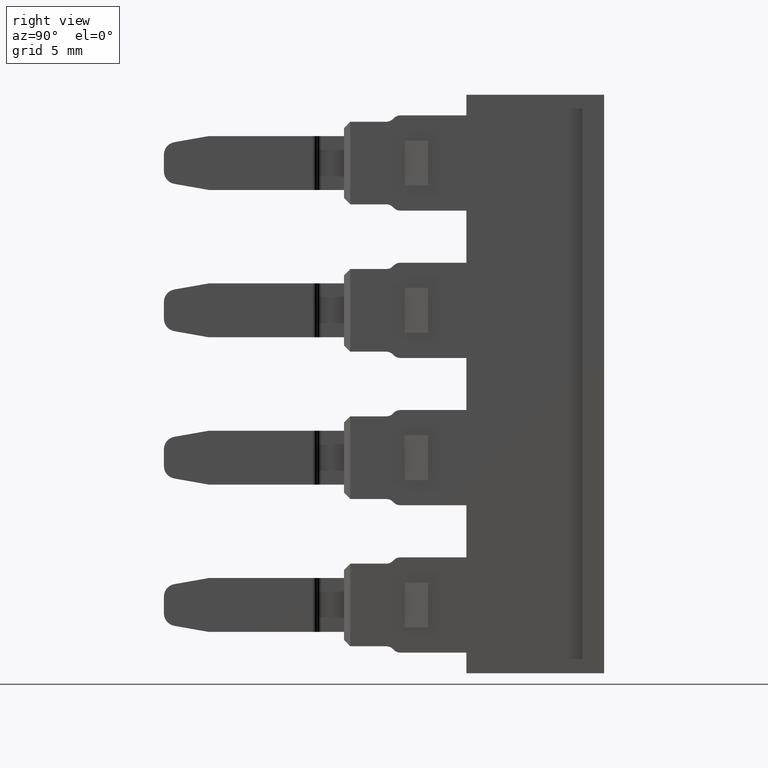
[diagram: clean part render]
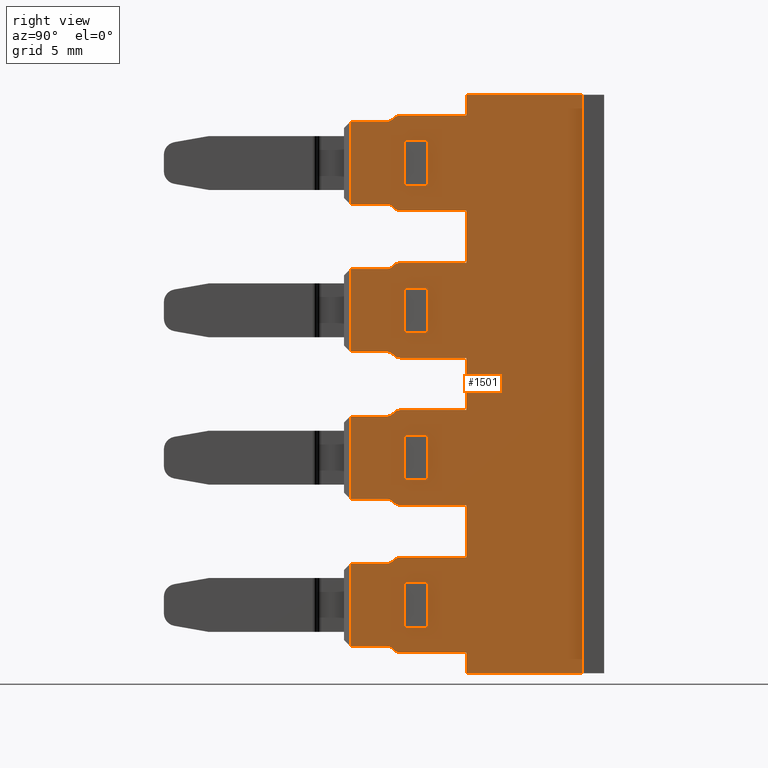
[diagram: same view with one face highlighted and labeled with its STEP entity id]
A machine part, right view. The second image highlights one B-rep face of the part: STEP entity #1501.
In plain terms, the highlighted planar face has unit normal (1, 0, 0).
Its self-contained STEP definition (entity closure, byte-faithful):
#113 = EDGE_LOOP ( 'NONE', ( #2153, #2103, #2145, #2159 ) ) ;
#114 = EDGE_LOOP ( 'NONE', ( #2108, #2140, #2120, #2150 ) ) ;
#169 = EDGE_LOOP ( 'NONE', ( #2083, #2038, #2098, #2091 ) ) ;
#174 = EDGE_LOOP ( 'NONE', ( #2060, #2077, #2068, #2066, #2063, #2072, #2043, #2058, #2100, #2137, #2099, #2084, #2048, #2067, #2086, #2041, #2076, #2069, #2042, #2082, #2062, #2074, #2070, #2071, #2101, #2050, #2090, #2135, #2148, #2164, #2129, #2111, #2126, #2102, #2116, #2146, #2151, #2133, #2136, #2117, #2139, #2149, #2119, #2143, #2158, #2157, #2112, #2113, #2127, #2147, #2144, #2142 ) ) ;
#182 = EDGE_LOOP ( 'NONE', ( #2130, #2125, #2152, #2124 ) ) ;
#212 = VERTEX_POINT ( 'NONE', #2220 ) ;
#214 = VERTEX_POINT ( 'NONE', #2214 ) ;
#215 = VERTEX_POINT ( 'NONE', #2201 ) ;
#216 = VERTEX_POINT ( 'NONE', #2178 ) ;
#217 = VERTEX_POINT ( 'NONE', #2203 ) ;
#218 = VERTEX_POINT ( 'NONE', #2184 ) ;
#220 = VERTEX_POINT ( 'NONE', #2206 ) ;
#223 = VERTEX_POINT ( 'NONE', #2176 ) ;
#224 = VERTEX_POINT ( 'NONE', #2192 ) ;
#225 = VERTEX_POINT ( 'NONE', #2202 ) ;
#226 = VERTEX_POINT ( 'NONE', #2182 ) ;
#227 = VERTEX_POINT ( 'NONE', #2187 ) ;
#228 = VERTEX_POINT ( 'NONE', #2177 ) ;
#229 = VERTEX_POINT ( 'NONE', #2200 ) ;
#231 = VERTEX_POINT ( 'NONE', #2196 ) ;
#234 = VERTEX_POINT ( 'NONE', #2208 ) ;
#236 = VERTEX_POINT ( 'NONE', #2168 ) ;
#238 = VERTEX_POINT ( 'NONE', #2197 ) ;
#239 = VERTEX_POINT ( 'NONE', #2215 ) ;
#240 = VERTEX_POINT ( 'NONE', #2193 ) ;
#241 = VERTEX_POINT ( 'NONE', #2189 ) ;
#244 = VERTEX_POINT ( 'NONE', #2198 ) ;
#245 = VERTEX_POINT ( 'NONE', #2219 ) ;
#246 = VERTEX_POINT ( 'NONE', #2169 ) ;
#247 = VERTEX_POINT ( 'NONE', #2185 ) ;
#248 = VERTEX_POINT ( 'NONE', #2199 ) ;
#251 = VERTEX_POINT ( 'NONE', #2222 ) ;
#252 = VERTEX_POINT ( 'NONE', #2190 ) ;
#253 = VERTEX_POINT ( 'NONE', #2204 ) ;
#255 = VERTEX_POINT ( 'NONE', #2221 ) ;
#256 = VERTEX_POINT ( 'NONE', #2170 ) ;
#257 = VERTEX_POINT ( 'NONE', #2223 ) ;
#259 = VERTEX_POINT ( 'NONE', #2225 ) ;
#260 = VERTEX_POINT ( 'NONE', #2226 ) ;
#262 = VERTEX_POINT ( 'NONE', #2171 ) ;
#263 = VERTEX_POINT ( 'NONE', #2252 ) ;
#264 = VERTEX_POINT ( 'NONE', #2257 ) ;
#265 = VERTEX_POINT ( 'NONE', #2270 ) ;
#266 = VERTEX_POINT ( 'NONE', #2259 ) ;
#267 = VERTEX_POINT ( 'NONE', #2282 ) ;
#268 = VERTEX_POINT ( 'NONE', #2231 ) ;
#269 = VERTEX_POINT ( 'NONE', #2235 ) ;
#270 = VERTEX_POINT ( 'NONE', #2258 ) ;
#271 = VERTEX_POINT ( 'NONE', #2254 ) ;
#272 = VERTEX_POINT ( 'NONE', #2271 ) ;
#273 = VERTEX_POINT ( 'NONE', #2285 ) ;
#274 = VERTEX_POINT ( 'NONE', #2244 ) ;
#275 = VERTEX_POINT ( 'NONE', #2238 ) ;
#282 = VERTEX_POINT ( 'NONE', #2275 ) ;
#283 = VERTEX_POINT ( 'NONE', #2288 ) ;
#285 = VERTEX_POINT ( 'NONE', #2272 ) ;
#288 = VERTEX_POINT ( 'NONE', #2251 ) ;
#290 = VERTEX_POINT ( 'NONE', #2267 ) ;
#292 = VERTEX_POINT ( 'NONE', #2283 ) ;
#295 = VERTEX_POINT ( 'NONE', #2265 ) ;
#298 = VERTEX_POINT ( 'NONE', #2263 ) ;
#299 = VERTEX_POINT ( 'NONE', #2269 ) ;
#303 = VERTEX_POINT ( 'NONE', #2266 ) ;
#307 = VERTEX_POINT ( 'NONE', #2276 ) ;
#309 = VERTEX_POINT ( 'NONE', #2228 ) ;
#311 = VERTEX_POINT ( 'NONE', #2286 ) ;
#318 = VERTEX_POINT ( 'NONE', #2241 ) ;
#331 = VERTEX_POINT ( 'NONE', #2339 ) ;
#335 = VERTEX_POINT ( 'NONE', #2308 ) ;
#336 = VERTEX_POINT ( 'NONE', #2299 ) ;
#337 = VERTEX_POINT ( 'NONE', #2332 ) ;
#442 = VERTEX_POINT ( 'NONE', #2414 ) ;
#517 = VERTEX_POINT ( 'NONE', #2424 ) ;
#1018 = EDGE_CURVE ( 'NONE', #267, #256, #2654, .T. ) ;
#1025 = EDGE_CURVE ( 'NONE', #259, #251, #2679, .T. ) ;
#1064 = EDGE_CURVE ( 'NONE', #255, #267, #3015, .T. ) ;
#1073 = EDGE_CURVE ( 'NONE', #309, #266, #1650, .T. ) ;
#1074 = EDGE_CURVE ( 'NONE', #234, #260, #2986, .T. ) ;
#1077 = EDGE_CURVE ( 'NONE', #229, #215, #3090, .T. ) ;
#1078 = EDGE_CURVE ( 'NONE', #270, #248, #1645, .T. ) ;
#1080 = EDGE_CURVE ( 'NONE', #228, #253, #3063, .T. ) ;
#1081 = EDGE_CURVE ( 'NONE', #224, #239, #1679, .T. ) ;
#1082 = EDGE_CURVE ( 'NONE', #273, #240, #1683, .T. ) ;
#1083 = EDGE_CURVE ( 'NONE', #247, #223, #1653, .T. ) ;
#1086 = EDGE_CURVE ( 'NONE', #282, #337, #4473, .T. ) ;
#1087 = EDGE_CURVE ( 'NONE', #231, #264, #4481, .T. ) ;
#1089 = EDGE_CURVE ( 'NONE', #282, #266, #3072, .T. ) ;
#1091 = EDGE_CURVE ( 'NONE', #271, #442, #3537, .T. ) ;
#1092 = EDGE_CURVE ( 'NONE', #263, #238, #3536, .T. ) ;
#1093 = EDGE_CURVE ( 'NONE', #269, #241, #3109, .T. ) ;
#1094 = EDGE_CURVE ( 'NONE', #248, #252, #4482, .T. ) ;
#1095 = EDGE_CURVE ( 'NONE', #239, #265, #3055, .T. ) ;
#1096 = EDGE_CURVE ( 'NONE', #264, #272, #3543, .T. ) ;
#1097 = EDGE_CURVE ( 'NONE', #311, #260, #3541, .T. ) ;
#1099 = EDGE_CURVE ( 'NONE', #268, #256, #3093, .T. ) ;
#1102 = EDGE_CURVE ( 'NONE', #265, #217, #3531, .T. ) ;
#1104 = EDGE_CURVE ( 'NONE', #217, #216, #3603, .T. ) ;
#1105 = EDGE_CURVE ( 'NONE', #318, #298, #3586, .T. ) ;
#1106 = EDGE_CURVE ( 'NONE', #298, #303, #3584, .T. ) ;
#1108 = EDGE_CURVE ( 'NONE', #234, #244, #3582, .T. ) ;
#1113 = EDGE_CURVE ( 'NONE', #259, #285, #3593, .T. ) ;
#1118 = EDGE_CURVE ( 'NONE', #268, #251, #3646, .T. ) ;
#1120 = EDGE_CURVE ( 'NONE', #246, #227, #3053, .T. ) ;
#1122 = EDGE_CURVE ( 'NONE', #224, #252, #3061, .T. ) ;
#1125 = EDGE_CURVE ( 'NONE', #226, #272, #3642, .T. ) ;
#1127 = EDGE_CURVE ( 'NONE', #303, #309, #3082, .T. ) ;
#1128 = EDGE_CURVE ( 'NONE', #228, #229, #3613, .T. ) ;
#1131 = EDGE_CURVE ( 'NONE', #275, #337, #3644, .T. ) ;
#1135 = EDGE_CURVE ( 'NONE', #225, #246, #3687, .T. ) ;
#1139 = EDGE_CURVE ( 'NONE', #517, #255, #3690, .T. ) ;
#1145 = EDGE_CURVE ( 'NONE', #214, #295, #3676, .T. ) ;
#1146 = EDGE_CURVE ( 'NONE', #220, #285, #3138, .T. ) ;
#1149 = EDGE_CURVE ( 'NONE', #283, #318, #3738, .T. ) ;
#1151 = EDGE_CURVE ( 'NONE', #218, #240, #3709, .T. ) ;
#1154 = EDGE_CURVE ( 'NONE', #442, #517, #3725, .T. ) ;
#1156 = EDGE_CURVE ( 'NONE', #275, #231, #3731, .T. ) ;
#1159 = EDGE_CURVE ( 'NONE', #215, #257, #3735, .T. ) ;
#1160 = EDGE_CURVE ( 'NONE', #245, #218, #3716, .T. ) ;
#1164 = EDGE_CURVE ( 'NONE', #227, #241, #3770, .T. ) ;
#1168 = EDGE_CURVE ( 'NONE', #244, #263, #3745, .T. ) ;
#1171 = EDGE_CURVE ( 'NONE', #307, #283, #3153, .T. ) ;
#1172 = EDGE_CURVE ( 'NONE', #245, #273, #3754, .T. ) ;
#1173 = EDGE_CURVE ( 'NONE', #299, #311, #3155, .T. ) ;
#1179 = EDGE_CURVE ( 'NONE', #220, #307, #3801, .T. ) ;
#1183 = EDGE_CURVE ( 'NONE', #257, #225, #3789, .T. ) ;
#1185 = EDGE_CURVE ( 'NONE', #269, #270, #3792, .T. ) ;
#1186 = EDGE_CURVE ( 'NONE', #247, #238, #3230, .T. ) ;
#1187 = EDGE_CURVE ( 'NONE', #223, #271, #3186, .T. ) ;
#1188 = EDGE_CURVE ( 'NONE', #262, #214, #3810, .T. ) ;
#1189 = EDGE_CURVE ( 'NONE', #216, #299, #3828, .T. ) ;
#1190 = EDGE_CURVE ( 'NONE', #288, #331, #3829, .T. ) ;
#1193 = EDGE_CURVE ( 'NONE', #226, #253, #3852, .T. ) ;
#1208 = EDGE_CURVE ( 'NONE', #236, #335, #3843, .T. ) ;
#1228 = EDGE_CURVE ( 'NONE', #274, #290, #3925, .T. ) ;
#1231 = EDGE_CURVE ( 'NONE', #212, #295, #3963, .T. ) ;
#1232 = EDGE_CURVE ( 'NONE', #236, #336, #3947, .T. ) ;
#1234 = EDGE_CURVE ( 'NONE', #274, #288, #3938, .T. ) ;
#1238 = EDGE_CURVE ( 'NONE', #262, #212, #3936, .T. ) ;
#1244 = EDGE_CURVE ( 'NONE', #290, #331, #3985, .T. ) ;
#1248 = EDGE_CURVE ( 'NONE', #335, #292, #4015, .T. ) ;
#1251 = EDGE_CURVE ( 'NONE', #336, #292, #3981, .T. ) ;
#1501 = ADVANCED_FACE ( 'NONE', ( #5405, #5395, #5385, #5397, #5370 ), #5398, .T. ) ;
#1598 = CARTESIAN_POINT ( 'NONE',  ( 112.2452529172787600, 248.1959466852284500, 150.0398226793859900 ) ) ;
#1600 = DIRECTION ( 'NONE',  ( -1.000000000000000000, -2.643655590711540000E-014, -7.193572994224081300E-015 ) ) ;
#1639 = DIRECTION ( 'NONE',  ( 2.775557561563659400E-014, -1.000000000000000000, 0.0000000000000000000 ) ) ;
#1643 = CARTESIAN_POINT ( 'NONE',  ( 112.2452529172786200, 248.1959466852285100, 172.0398226793865000 ) ) ;
#1645 = LINE ( 'NONE', #1676, #3080 ) ;
#1649 = DIRECTION ( 'NONE',  ( -1.000000000000000000, -2.643655590711540000E-014, -7.193572994224081300E-015 ) ) ;
#1650 = LINE ( 'NONE', #1655, #3006 ) ;
#1652 = CARTESIAN_POINT ( 'NONE',  ( 112.2452529172787200, 248.9601602476020000, 158.8898226793860100 ) ) ;
#1653 = LINE ( 'NONE', #2481, #3096 ) ;
#1655 = CARTESIAN_POINT ( 'NONE',  ( 112.2452529172787500, 249.1566068570083700, 141.5862692887930100 ) ) ;
#1658 = DIRECTION ( 'NONE',  ( -1.000000000000000000, -2.643655590711540000E-014, -7.193572994224081300E-015 ) ) ;
#1661 = CARTESIAN_POINT ( 'NONE',  ( 112.2452529172786800, 249.1566068570084800, 164.0933760699795100 ) ) ;
#1662 = DIRECTION ( 'NONE',  ( -0.0000000000000000000, -0.7071067811865150400, -0.7071067811865799900 ) ) ;
#1665 = DIRECTION ( 'NONE',  ( 2.775557561563659400E-014, -1.000000000000000000, 0.0000000000000000000 ) ) ;
#1666 = DIRECTION ( 'NONE',  ( 7.193572994224081300E-015, 1.901732946337204600E-028, -1.000000000000000000 ) ) ;
#1669 = DIRECTION ( 'NONE',  ( 2.775557561562888800E-014, -1.000000000000000000, 0.0000000000000000000 ) ) ;
#1670 = CARTESIAN_POINT ( 'NONE',  ( 112.2452529172785800, 249.2101602476015800, 154.0898226793856900 ) ) ;
#1671 = DIRECTION ( 'NONE',  ( 2.775557561562888800E-014, -1.000000000000000000, 0.0000000000000000000 ) ) ;
#1675 = DIRECTION ( 'NONE',  ( -0.0000000000000000000, 0.7071067811866451600, -0.7071067811864498700 ) ) ;
#1676 = CARTESIAN_POINT ( 'NONE',  ( 112.2452529172781700, 252.6435672046369800, 222.8398226793859700 ) ) ;
#1679 = LINE ( 'NONE', #1661, #3103 ) ;
#1680 = DIRECTION ( 'NONE',  ( -1.000000000000000000, -2.643655590711540000E-014, -7.193572994224081300E-015 ) ) ;
#1682 = CARTESIAN_POINT ( 'NONE',  ( 112.2452529172786200, 248.9601602476020000, 171.3898226793865000 ) ) ;
#1683 = LINE ( 'NONE', #1670, #3095 ) ;
#1684 = DIRECTION ( 'NONE',  ( -0.0000000000000000000, -1.000000000000000000, -0.0000000000000000000 ) ) ;
#2038 = ORIENTED_EDGE ( 'NONE', *, *, #1151, .T. ) ;
#2041 = ORIENTED_EDGE ( 'NONE', *, *, #1094, .T. ) ;
#2042 = ORIENTED_EDGE ( 'NONE', *, *, #1095, .T. ) ;
#2043 = ORIENTED_EDGE ( 'NONE', *, *, #1077, .T. ) ;
#2048 = ORIENTED_EDGE ( 'NONE', *, *, #1093, .F. ) ;
#2050 = ORIENTED_EDGE ( 'NONE', *, *, #1108, .T. ) ;
#2058 = ORIENTED_EDGE ( 'NONE', *, *, #1159, .T. ) ;
#2060 = ORIENTED_EDGE ( 'NONE', *, *, #1087, .T. ) ;
#2062 = ORIENTED_EDGE ( 'NONE', *, *, #1104, .T. ) ;
#2063 = ORIENTED_EDGE ( 'NONE', *, *, #1080, .F. ) ;
#2066 = ORIENTED_EDGE ( 'NONE', *, *, #1193, .T. ) ;
#2067 = ORIENTED_EDGE ( 'NONE', *, *, #1185, .T. ) ;
#2068 = ORIENTED_EDGE ( 'NONE', *, *, #1125, .F. ) ;
#2069 = ORIENTED_EDGE ( 'NONE', *, *, #1081, .T. ) ;
#2070 = ORIENTED_EDGE ( 'NONE', *, *, #1173, .T. ) ;
#2071 = ORIENTED_EDGE ( 'NONE', *, *, #1097, .T. ) ;
#2072 = ORIENTED_EDGE ( 'NONE', *, *, #1128, .T. ) ;
#2074 = ORIENTED_EDGE ( 'NONE', *, *, #1189, .T. ) ;
#2076 = ORIENTED_EDGE ( 'NONE', *, *, #1122, .F. ) ;
#2077 = ORIENTED_EDGE ( 'NONE', *, *, #1096, .T. ) ;
#2082 = ORIENTED_EDGE ( 'NONE', *, *, #1102, .T. ) ;
#2083 = ORIENTED_EDGE ( 'NONE', *, *, #1160, .T. ) ;
#2084 = ORIENTED_EDGE ( 'NONE', *, *, #1164, .T. ) ;
#2086 = ORIENTED_EDGE ( 'NONE', *, *, #1078, .T. ) ;
#2090 = ORIENTED_EDGE ( 'NONE', *, *, #1168, .T. ) ;
#2091 = ORIENTED_EDGE ( 'NONE', *, *, #1172, .F. ) ;
#2098 = ORIENTED_EDGE ( 'NONE', *, *, #1082, .F. ) ;
#2099 = ORIENTED_EDGE ( 'NONE', *, *, #1120, .T. ) ;
#2100 = ORIENTED_EDGE ( 'NONE', *, *, #1183, .T. ) ;
#2101 = ORIENTED_EDGE ( 'NONE', *, *, #1074, .F. ) ;
#2102 = ORIENTED_EDGE ( 'NONE', *, *, #1139, .T. ) ;
#2103 = ORIENTED_EDGE ( 'NONE', *, *, #1190, .T. ) ;
#2108 = ORIENTED_EDGE ( 'NONE', *, *, #1208, .T. ) ;
#2111 = ORIENTED_EDGE ( 'NONE', *, *, #1091, .T. ) ;
#2112 = ORIENTED_EDGE ( 'NONE', *, *, #1127, .T. ) ;
#2113 = ORIENTED_EDGE ( 'NONE', *, *, #1073, .T. ) ;
#2116 = ORIENTED_EDGE ( 'NONE', *, *, #1064, .T. ) ;
#2117 = ORIENTED_EDGE ( 'NONE', *, *, #1113, .T. ) ;
#2119 = ORIENTED_EDGE ( 'NONE', *, *, #1171, .T. ) ;
#2120 = ORIENTED_EDGE ( 'NONE', *, *, #1251, .F. ) ;
#2124 = ORIENTED_EDGE ( 'NONE', *, *, #1238, .F. ) ;
#2125 = ORIENTED_EDGE ( 'NONE', *, *, #1145, .T. ) ;
#2126 = ORIENTED_EDGE ( 'NONE', *, *, #1154, .T. ) ;
#2127 = ORIENTED_EDGE ( 'NONE', *, *, #1089, .F. ) ;
#2129 = ORIENTED_EDGE ( 'NONE', *, *, #1187, .T. ) ;
#2130 = ORIENTED_EDGE ( 'NONE', *, *, #1188, .T. ) ;
#2133 = ORIENTED_EDGE ( 'NONE', *, *, #1118, .T. ) ;
#2135 = ORIENTED_EDGE ( 'NONE', *, *, #1092, .T. ) ;
#2136 = ORIENTED_EDGE ( 'NONE', *, *, #1025, .F. ) ;
#2137 = ORIENTED_EDGE ( 'NONE', *, *, #1135, .T. ) ;
#2139 = ORIENTED_EDGE ( 'NONE', *, *, #1146, .F. ) ;
#2140 = ORIENTED_EDGE ( 'NONE', *, *, #1248, .T. ) ;
#2142 = ORIENTED_EDGE ( 'NONE', *, *, #1156, .T. ) ;
#2143 = ORIENTED_EDGE ( 'NONE', *, *, #1149, .T. ) ;
#2144 = ORIENTED_EDGE ( 'NONE', *, *, #1131, .F. ) ;
#2145 = ORIENTED_EDGE ( 'NONE', *, *, #1244, .F. ) ;
#2146 = ORIENTED_EDGE ( 'NONE', *, *, #1018, .T. ) ;
#2147 = ORIENTED_EDGE ( 'NONE', *, *, #1086, .T. ) ;
#2148 = ORIENTED_EDGE ( 'NONE', *, *, #1186, .F. ) ;
#2149 = ORIENTED_EDGE ( 'NONE', *, *, #1179, .T. ) ;
#2150 = ORIENTED_EDGE ( 'NONE', *, *, #1232, .F. ) ;
#2151 = ORIENTED_EDGE ( 'NONE', *, *, #1099, .F. ) ;
#2152 = ORIENTED_EDGE ( 'NONE', *, *, #1231, .F. ) ;
#2153 = ORIENTED_EDGE ( 'NONE', *, *, #1234, .T. ) ;
#2157 = ORIENTED_EDGE ( 'NONE', *, *, #1106, .T. ) ;
#2158 = ORIENTED_EDGE ( 'NONE', *, *, #1105, .T. ) ;
#2159 = ORIENTED_EDGE ( 'NONE', *, *, #1228, .F. ) ;
#2164 = ORIENTED_EDGE ( 'NONE', *, *, #1083, .T. ) ;
#2168 = CARTESIAN_POINT ( 'NONE',  ( 112.2452529172785300, 250.5101602476015900, 167.9898226793856700 ) ) ;
#2169 = CARTESIAN_POINT ( 'NONE',  ( 112.2452529172786900, 248.1959466852285100, 166.9398226793865100 ) ) ;
#2170 = CARTESIAN_POINT ( 'NONE',  ( 112.2452529172787300, 248.6066068570087000, 150.3362692887926900 ) ) ;
#2171 = CARTESIAN_POINT ( 'NONE',  ( 112.2452529172785800, 250.5101602476016500, 159.7898226793856800 ) ) ;
#2176 = CARTESIAN_POINT ( 'NONE',  ( 112.2452529172786900, 248.5495000758218400, 155.2862692887928500 ) ) ;
#2177 = CARTESIAN_POINT ( 'NONE',  ( 112.2452529172786200, 248.6066068570087000, 171.7433760699797500 ) ) ;
#2178 = CARTESIAN_POINT ( 'NONE',  ( 112.2452529172787500, 246.1815789080018000, 158.7398226793860900 ) ) ;
#2182 = CARTESIAN_POINT ( 'NONE',  ( 112.2452529172785300, 252.6435672046369800, 171.8898226793864700 ) ) ;
#2184 = CARTESIAN_POINT ( 'NONE',  ( 112.2452529172785800, 249.2101602476015800, 151.5898226793856900 ) ) ;
#2185 = CARTESIAN_POINT ( 'NONE',  ( 112.2452529172786800, 248.6066068570082500, 155.3433760699792900 ) ) ;
#2187 = CARTESIAN_POINT ( 'NONE',  ( 112.2452529172786600, 248.5495000758219000, 166.7933760699797300 ) ) ;
#2189 = CARTESIAN_POINT ( 'NONE',  ( 112.2452529172786800, 248.6066068570083600, 166.7362692887932100 ) ) ;
#2190 = CARTESIAN_POINT ( 'NONE',  ( 112.2452529172786900, 248.9601602476015500, 163.6898226793860000 ) ) ;
#2192 = CARTESIAN_POINT ( 'NONE',  ( 112.2452529172786800, 248.6066068570083000, 163.5433760699792700 ) ) ;
#2193 = CARTESIAN_POINT ( 'NONE',  ( 112.2452529172785800, 249.2101602476015800, 154.0898226793856900 ) ) ;
#2196 = CARTESIAN_POINT ( 'NONE',  ( 112.2452529172785200, 259.1101602476018700, 140.8398226793859700 ) ) ;
#2197 = CARTESIAN_POINT ( 'NONE',  ( 112.2452529172786900, 248.9601602476015200, 155.4898226793859800 ) ) ;
#2198 = CARTESIAN_POINT ( 'NONE',  ( 112.2452529172786200, 252.6435672046369800, 158.3898226793860100 ) ) ;
#2199 = CARTESIAN_POINT ( 'NONE',  ( 112.2452529172785900, 252.6435672046369800, 163.6898226793860000 ) ) ;
#2200 = CARTESIAN_POINT ( 'NONE',  ( 112.2452529172786200, 248.5495000758218400, 171.6862692887932600 ) ) ;
#2201 = CARTESIAN_POINT ( 'NONE',  ( 112.2452529172786300, 248.1959466852284800, 171.5398226793865000 ) ) ;
#2202 = CARTESIAN_POINT ( 'NONE',  ( 112.2452529172786800, 246.1815789080018500, 166.9398226793865100 ) ) ;
#2203 = CARTESIAN_POINT ( 'NONE',  ( 112.2452529172788300, 246.1815789080017400, 163.3398226793860300 ) ) ;
#2204 = CARTESIAN_POINT ( 'NONE',  ( 112.2452529172786200, 248.9601602476020000, 171.8898226793864700 ) ) ;
#2206 = CARTESIAN_POINT ( 'NONE',  ( 112.2452529172786800, 248.6066068570081900, 147.1433760699792700 ) ) ;
#2208 = CARTESIAN_POINT ( 'NONE',  ( 112.2452529172787200, 248.9601602476019800, 158.3898226793860100 ) ) ;
#2214 = CARTESIAN_POINT ( 'NONE',  ( 112.2452529172785800, 249.2101602476016400, 159.7898226793856800 ) ) ;
#2215 = CARTESIAN_POINT ( 'NONE',  ( 112.2452529172786900, 248.5495000758219000, 163.4862692887928400 ) ) ;
#2219 = CARTESIAN_POINT ( 'NONE',  ( 112.2452529172785800, 250.5101602476015900, 151.5898226793856900 ) ) ;
#2220 = CARTESIAN_POINT ( 'NONE',  ( 112.2452529172786500, 250.5101602476016500, 162.2898226793856800 ) ) ;
#2221 = CARTESIAN_POINT ( 'NONE',  ( 112.2452529172787600, 248.1959466852284500, 150.5398226793860500 ) ) ;
#2222 = CARTESIAN_POINT ( 'NONE',  ( 112.2452529172786200, 252.6435672046369200, 150.1898226793860300 ) ) ;
#2223 = CARTESIAN_POINT ( 'NONE',  ( 112.2452529172787300, 246.1815789080018800, 171.5398226793864800 ) ) ;
#2225 = CARTESIAN_POINT ( 'NONE',  ( 112.2452529172785900, 252.6435672046368700, 147.2898226793860200 ) ) ;
#2226 = CARTESIAN_POINT ( 'NONE',  ( 112.2452529172787300, 248.6066068570087600, 158.5362692887926500 ) ) ;
#2228 = CARTESIAN_POINT ( 'NONE',  ( 112.2452529172787500, 248.5495000758217300, 142.1933760699792500 ) ) ;
#2231 = CARTESIAN_POINT ( 'NONE',  ( 112.2452529172787200, 248.9601602476019200, 150.1898226793860300 ) ) ;
#2235 = CARTESIAN_POINT ( 'NONE',  ( 112.2452529172786600, 248.9601602476015500, 166.5898226793864900 ) ) ;
#2238 = CARTESIAN_POINT ( 'NONE',  ( 112.2452529172786300, 252.6435672046368700, 140.8398226793859700 ) ) ;
#2241 = CARTESIAN_POINT ( 'NONE',  ( 112.2452529172788300, 246.1815789080016300, 146.9398226793860500 ) ) ;
#2244 = CARTESIAN_POINT ( 'NONE',  ( 112.2452529172785800, 250.5101602476015300, 143.3898226793856700 ) ) ;
#2251 = CARTESIAN_POINT ( 'NONE',  ( 112.2452529172785800, 249.2101602476015500, 143.3898226793856700 ) ) ;
#2252 = CARTESIAN_POINT ( 'NONE',  ( 112.2452529172785900, 252.6435672046369200, 155.4898226793859800 ) ) ;
#2254 = CARTESIAN_POINT ( 'NONE',  ( 112.2452529172787100, 248.1959466852284200, 155.1398226793859900 ) ) ;
#2257 = CARTESIAN_POINT ( 'NONE',  ( 112.2452529172783500, 259.1101602476019800, 173.0398226793859900 ) ) ;
#2258 = CARTESIAN_POINT ( 'NONE',  ( 112.2452529172785600, 252.6435672046369800, 166.5898226793864900 ) ) ;
#2259 = CARTESIAN_POINT ( 'NONE',  ( 112.2452529172787300, 248.6066068570086400, 142.1362692887926800 ) ) ;
#2263 = CARTESIAN_POINT ( 'NONE',  ( 112.2452529172787500, 246.1815789080016800, 142.3398226793861200 ) ) ;
#2265 = CARTESIAN_POINT ( 'NONE',  ( 112.2452529172785800, 249.2101602476016400, 162.2898226793856800 ) ) ;
#2266 = CARTESIAN_POINT ( 'NONE',  ( 112.2452529172787600, 248.1959466852283900, 142.3398226793860600 ) ) ;
#2267 = CARTESIAN_POINT ( 'NONE',  ( 112.2452529172786500, 250.5101602476015300, 145.8898226793857000 ) ) ;
#2269 = CARTESIAN_POINT ( 'NONE',  ( 112.2452529172787600, 248.1959466852285100, 158.7398226793860400 ) ) ;
#2270 = CARTESIAN_POINT ( 'NONE',  ( 112.2452529172787100, 248.1959466852284800, 163.3398226793859700 ) ) ;
#2271 = CARTESIAN_POINT ( 'NONE',  ( 112.2452529172785200, 252.6435672046369800, 173.0398226793859900 ) ) ;
#2272 = CARTESIAN_POINT ( 'NONE',  ( 112.2452529172786900, 248.9601602476014600, 147.2898226793860200 ) ) ;
#2275 = CARTESIAN_POINT ( 'NONE',  ( 112.2452529172787200, 248.9601602476018600, 141.9898226793860100 ) ) ;
#2276 = CARTESIAN_POINT ( 'NONE',  ( 112.2452529172786900, 248.5495000758217800, 147.0862692887928300 ) ) ;
#2282 = CARTESIAN_POINT ( 'NONE',  ( 112.2452529172787500, 248.5495000758217800, 150.3933760699792700 ) ) ;
#2283 = CARTESIAN_POINT ( 'NONE',  ( 112.2452529172785300, 249.2101602476015800, 170.4898226793856700 ) ) ;
#2285 = CARTESIAN_POINT ( 'NONE',  ( 112.2452529172786500, 250.5101602476015900, 154.0898226793856900 ) ) ;
#2286 = CARTESIAN_POINT ( 'NONE',  ( 112.2452529172787500, 248.5495000758218400, 158.5933760699792600 ) ) ;
#2288 = CARTESIAN_POINT ( 'NONE',  ( 112.2452529172787100, 248.1959466852283600, 146.9398226793860000 ) ) ;
#2299 = CARTESIAN_POINT ( 'NONE',  ( 112.2452529172785900, 250.5101602476015900, 170.4898226793856700 ) ) ;
#2308 = CARTESIAN_POINT ( 'NONE',  ( 112.2452529172785300, 249.2101602476015800, 167.9898226793856700 ) ) ;
#2332 = CARTESIAN_POINT ( 'NONE',  ( 112.2452529172786200, 252.6435672046368700, 141.9898226793860100 ) ) ;
#2339 = CARTESIAN_POINT ( 'NONE',  ( 112.2452529172785800, 249.2101602476015500, 145.8898226793857000 ) ) ;
#2414 = CARTESIAN_POINT ( 'NONE',  ( 112.2452529172788300, 246.1815789080016800, 155.1398226793860400 ) ) ;
#2424 = CARTESIAN_POINT ( 'NONE',  ( 112.2452529172787500, 246.1815789080017400, 150.5398226793861100 ) ) ;
#2481 = CARTESIAN_POINT ( 'NONE',  ( 112.2452529172786800, 249.1566068570084300, 155.8933760699795000 ) ) ;
#2654 = LINE ( 'NONE', #2695, #2981 ) ;
#2679 = LINE ( 'NONE', #2718, #2949 ) ;
#2691 = DIRECTION ( 'NONE',  ( -0.0000000000000000000, 0.7071067811866451600, -0.7071067811864498700 ) ) ;
#2695 = CARTESIAN_POINT ( 'NONE',  ( 112.2452529172787500, 249.1566068570084300, 149.7862692887930200 ) ) ;
#2710 = DIRECTION ( 'NONE',  ( -0.0000000000000000000, 0.0000000000000000000, 1.000000000000000000 ) ) ;
#2715 = DIRECTION ( 'NONE',  ( -0.0000000000000000000, -0.7071067811865150400, -0.7071067811865799900 ) ) ;
#2718 = CARTESIAN_POINT ( 'NONE',  ( 112.2452529172786300, 252.6435672046369200, 146.6398226793870100 ) ) ;
#2793 = AXIS2_PLACEMENT_3D ( 'NONE', #5407, #5384, #5400 ) ;
#2949 = VECTOR ( 'NONE', #2710, 1000.000000000000000 ) ;
#2981 = VECTOR ( 'NONE', #2691, 1000.000000000000000 ) ;
#2986 = CIRCLE ( 'NONE', #2998, 0.5000000000000004400 ) ;
#2994 = AXIS2_PLACEMENT_3D ( 'NONE', #1598, #1600, #1639 ) ;
#2998 = AXIS2_PLACEMENT_3D ( 'NONE', #1652, #1680, #1669 ) ;
#3006 = VECTOR ( 'NONE', #1675, 1000.000000000000000 ) ;
#3015 = CIRCLE ( 'NONE', #2994, 0.4999999999998616700 ) ;
#3052 = VECTOR ( 'NONE', #3649, 1000.000000000000000 ) ;
#3053 = CIRCLE ( 'NONE', #3066, 0.5000000000000282000 ) ;
#3055 = CIRCLE ( 'NONE', #3108, 0.5000000000000282000 ) ;
#3057 = AXIS2_PLACEMENT_3D ( 'NONE', #3553, #3552, #3538 ) ;
#3058 = VECTOR ( 'NONE', #3594, 1000.000000000000000 ) ;
#3059 = VECTOR ( 'NONE', #3539, 1000.000000000000000 ) ;
#3060 = VECTOR ( 'NONE', #3610, 1000.000000000000000 ) ;
#3061 = CIRCLE ( 'NONE', #3068, 0.5000000000000004400 ) ;
#3062 = VECTOR ( 'NONE', #3595, 1000.000000000000000 ) ;
#3063 = CIRCLE ( 'NONE', #3094, 0.5000000000000004400 ) ;
#3066 = AXIS2_PLACEMENT_3D ( 'NONE', #3639, #3620, #3627 ) ;
#3067 = AXIS2_PLACEMENT_3D ( 'NONE', #3525, #3526, #3534 ) ;
#3068 = AXIS2_PLACEMENT_3D ( 'NONE', #3641, #3617, #3628 ) ;
#3072 = CIRCLE ( 'NONE', #3057, 0.5000000000000004400 ) ;
#3078 = VECTOR ( 'NONE', #3563, 1000.000000000000000 ) ;
#3079 = VECTOR ( 'NONE', #3566, 1000.000000000000000 ) ;
#3080 = VECTOR ( 'NONE', #1666, 1000.000000000000000 ) ;
#3082 = CIRCLE ( 'NONE', #3130, 0.4999999999998616700 ) ;
#3083 = VECTOR ( 'NONE', #3570, 1000.000000000000000 ) ;
#3086 = VECTOR ( 'NONE', #3528, 1000.000000000000000 ) ;
#3087 = AXIS2_PLACEMENT_3D ( 'NONE', #3529, #3556, #3530 ) ;
#3090 = CIRCLE ( 'NONE', #3112, 0.4999999999998616700 ) ;
#3092 = VECTOR ( 'NONE', #3557, 1000.000000000000000 ) ;
#3093 = CIRCLE ( 'NONE', #3067, 0.5000000000000004400 ) ;
#3094 = AXIS2_PLACEMENT_3D ( 'NONE', #1682, #1658, #1671 ) ;
#3095 = VECTOR ( 'NONE', #1684, 1000.000000000000000 ) ;
#3096 = VECTOR ( 'NONE', #2715, 1000.000000000000000 ) ;
#3100 = VECTOR ( 'NONE', #3545, 1000.000000000000000 ) ;
#3101 = VECTOR ( 'NONE', #3588, 1000.000000000000000 ) ;
#3102 = VECTOR ( 'NONE', #4480, 1000.000000000000000 ) ;
#3103 = VECTOR ( 'NONE', #1662, 1000.000000000000000 ) ;
#3104 = VECTOR ( 'NONE', #3540, 1000.000000000000000 ) ;
#3108 = AXIS2_PLACEMENT_3D ( 'NONE', #3523, #3535, #3532 ) ;
#3109 = CIRCLE ( 'NONE', #3087, 0.5000000000000004400 ) ;
#3112 = AXIS2_PLACEMENT_3D ( 'NONE', #1643, #1649, #1665 ) ;
#3113 = VECTOR ( 'NONE', #3558, 1000.000000000000000 ) ;
#3114 = VECTOR ( 'NONE', #3696, 1000.000000000000000 ) ;
#3116 = VECTOR ( 'NONE', #3720, 1000.000000000000000 ) ;
#3119 = VECTOR ( 'NONE', #3737, 1000.000000000000000 ) ;
#3120 = VECTOR ( 'NONE', #3773, 1000.000000000000000 ) ;
#3126 = VECTOR ( 'NONE', #3701, 1000.000000000000000 ) ;
#3130 = AXIS2_PLACEMENT_3D ( 'NONE', #3636, #3645, #3647 ) ;
#3133 = VECTOR ( 'NONE', #3764, 1000.000000000000000 ) ;
#3137 = VECTOR ( 'NONE', #3666, 1000.000000000000000 ) ;
#3138 = CIRCLE ( 'NONE', #3171, 0.5000000000000004400 ) ;
#3152 = VECTOR ( 'NONE', #3741, 1000.000000000000000 ) ;
#3153 = CIRCLE ( 'NONE', #3172, 0.5000000000000282000 ) ;
#3155 = CIRCLE ( 'NONE', #3156, 0.4999999999998616700 ) ;
#3156 = AXIS2_PLACEMENT_3D ( 'NONE', #3775, #3772, #3774 ) ;
#3159 = VECTOR ( 'NONE', #3688, 1000.000000000000000 ) ;
#3161 = VECTOR ( 'NONE', #3693, 1000.000000000000000 ) ;
#3162 = VECTOR ( 'NONE', #3660, 1000.000000000000000 ) ;
#3163 = VECTOR ( 'NONE', #3708, 1000.000000000000000 ) ;
#3168 = VECTOR ( 'NONE', #3622, 1000.000000000000000 ) ;
#3171 = AXIS2_PLACEMENT_3D ( 'NONE', #3721, #3705, #3711 ) ;
#3172 = AXIS2_PLACEMENT_3D ( 'NONE', #3779, #3739, #3753 ) ;
#3174 = VECTOR ( 'NONE', #3710, 1000.000000000000000 ) ;
#3180 = AXIS2_PLACEMENT_3D ( 'NONE', #3805, #3795, #3796 ) ;
#3185 = AXIS2_PLACEMENT_3D ( 'NONE', #3800, #3814, #3809 ) ;
#3186 = CIRCLE ( 'NONE', #3180, 0.5000000000000282000 ) ;
#3189 = VECTOR ( 'NONE', #3823, 1000.000000000000000 ) ;
#3215 = VECTOR ( 'NONE', #3819, 1000.000000000000000 ) ;
#3218 = VECTOR ( 'NONE', #3802, 1000.000000000000000 ) ;
#3219 = VECTOR ( 'NONE', #3872, 1000.000000000000000 ) ;
#3220 = VECTOR ( 'NONE', #3871, 1000.000000000000000 ) ;
#3221 = VECTOR ( 'NONE', #3822, 1000.000000000000000 ) ;
#3230 = CIRCLE ( 'NONE', #3185, 0.5000000000000004400 ) ;
#3231 = VECTOR ( 'NONE', #3913, 1000.000000000000000 ) ;
#3232 = VECTOR ( 'NONE', #3794, 1000.000000000000000 ) ;
#3237 = VECTOR ( 'NONE', #3958, 1000.000000000000000 ) ;
#3240 = VECTOR ( 'NONE', #3934, 1000.000000000000000 ) ;
#3241 = VECTOR ( 'NONE', #3959, 1000.000000000000000 ) ;
#3243 = VECTOR ( 'NONE', #4004, 1000.000000000000000 ) ;
#3250 = VECTOR ( 'NONE', #3942, 1000.000000000000000 ) ;
#3263 = VECTOR ( 'NONE', #4008, 1000.000000000000000 ) ;
#3269 = VECTOR ( 'NONE', #3988, 1000.000000000000000 ) ;
#3270 = VECTOR ( 'NONE', #3982, 1000.000000000000000 ) ;
#3519 = CARTESIAN_POINT ( 'NONE',  ( 112.2452529172786800, 249.5101602476014500, 155.1398226793859900 ) ) ;
#3520 = CARTESIAN_POINT ( 'NONE',  ( 112.2452529172786100, 249.5101602476015000, 173.0398226793859900 ) ) ;
#3523 = CARTESIAN_POINT ( 'NONE',  ( 112.2452529172786900, 248.1959466852285100, 163.8398226793859700 ) ) ;
#3525 = CARTESIAN_POINT ( 'NONE',  ( 112.2452529172787200, 248.9601602476019500, 150.6898226793860300 ) ) ;
#3526 = DIRECTION ( 'NONE',  ( -1.000000000000000000, -2.643655590711540000E-014, -7.193572994224081300E-015 ) ) ;
#3528 = DIRECTION ( 'NONE',  ( 2.643655590711540000E-014, -1.000000000000000000, -0.0000000000000000000 ) ) ;
#3529 = CARTESIAN_POINT ( 'NONE',  ( 112.2452529172786600, 248.9601602476015500, 167.0898226793864900 ) ) ;
#3530 = DIRECTION ( 'NONE',  ( -2.775557561562888800E-014, 1.000000000000000000, 0.0000000000000000000 ) ) ;
#3531 = LINE ( 'NONE', #3587, #3101 ) ;
#3532 = DIRECTION ( 'NONE',  ( 2.775557561562734800E-014, -1.000000000000000000, 0.0000000000000000000 ) ) ;
#3534 = DIRECTION ( 'NONE',  ( 2.775557561562888800E-014, -1.000000000000000000, 0.0000000000000000000 ) ) ;
#3535 = DIRECTION ( 'NONE',  ( -1.000000000000000000, -2.643655590711540000E-014, -7.193572994224081300E-015 ) ) ;
#3536 = LINE ( 'NONE', #3555, #3086 ) ;
#3537 = LINE ( 'NONE', #3519, #3059 ) ;
#3538 = DIRECTION ( 'NONE',  ( 2.775557561562888800E-014, -1.000000000000000000, 0.0000000000000000000 ) ) ;
#3539 = DIRECTION ( 'NONE',  ( 2.643655590711540000E-014, -1.000000000000000000, -0.0000000000000000000 ) ) ;
#3540 = DIRECTION ( 'NONE',  ( 2.643655590711540000E-014, -1.000000000000000000, -0.0000000000000000000 ) ) ;
#3541 = LINE ( 'NONE', #3544, #3100 ) ;
#3543 = LINE ( 'NONE', #3520, #3092 ) ;
#3544 = CARTESIAN_POINT ( 'NONE',  ( 112.2452529172787500, 249.1566068570084800, 157.9862692887930100 ) ) ;
#3545 = DIRECTION ( 'NONE',  ( -0.0000000000000000000, 0.7071067811866451600, -0.7071067811864498700 ) ) ;
#3549 = CARTESIAN_POINT ( 'NONE',  ( 112.2452529172786800, 249.5101602476015000, 163.6898226793860000 ) ) ;
#3552 = DIRECTION ( 'NONE',  ( -1.000000000000000000, -2.643655590711540000E-014, -7.193572994224081300E-015 ) ) ;
#3553 = CARTESIAN_POINT ( 'NONE',  ( 112.2452529172787200, 248.9601602476018900, 142.4898226793860100 ) ) ;
#3555 = CARTESIAN_POINT ( 'NONE',  ( 112.2452529172786800, 249.5101602476014500, 155.4898226793859800 ) ) ;
#3556 = DIRECTION ( 'NONE',  ( -1.000000000000000000, -2.643655590711534900E-014, -7.193572994224081300E-015 ) ) ;
#3557 = DIRECTION ( 'NONE',  ( 2.643655590711540000E-014, -1.000000000000000000, -0.0000000000000000000 ) ) ;
#3558 = DIRECTION ( 'NONE',  ( -7.193572994224081300E-015, -1.901732946337204600E-028, 1.000000000000000000 ) ) ;
#3560 = CARTESIAN_POINT ( 'NONE',  ( 112.2452529172787100, 249.5101602476013900, 142.3398226793861200 ) ) ;
#3561 = CARTESIAN_POINT ( 'NONE',  ( 112.2452529172786800, 249.5101602476013900, 147.2898226793860200 ) ) ;
#3563 = DIRECTION ( 'NONE',  ( 7.193572994224081300E-015, 1.901732946337204600E-028, -1.000000000000000000 ) ) ;
#3566 = DIRECTION ( 'NONE',  ( 2.643655590711540000E-014, -1.000000000000000000, -0.0000000000000000000 ) ) ;
#3570 = DIRECTION ( 'NONE',  ( 7.193572994224081300E-015, 1.901732946337204600E-028, -1.000000000000000000 ) ) ;
#3577 = CARTESIAN_POINT ( 'NONE',  ( 112.2452529172787100, 249.5101602476015000, 158.3898226793860100 ) ) ;
#3582 = LINE ( 'NONE', #3577, #3062 ) ;
#3584 = LINE ( 'NONE', #3560, #3058 ) ;
#3586 = LINE ( 'NONE', #3602, #3078 ) ;
#3587 = CARTESIAN_POINT ( 'NONE',  ( 112.2452529172786800, 249.5101602476015000, 163.3398226793859700 ) ) ;
#3588 = DIRECTION ( 'NONE',  ( 2.643655590711540000E-014, -1.000000000000000000, -0.0000000000000000000 ) ) ;
#3593 = LINE ( 'NONE', #3561, #3079 ) ;
#3594 = DIRECTION ( 'NONE',  ( -2.643655590711540000E-014, 1.000000000000000000, 0.0000000000000000000 ) ) ;
#3595 = DIRECTION ( 'NONE',  ( -2.643655590711540000E-014, 1.000000000000000000, 0.0000000000000000000 ) ) ;
#3597 = CARTESIAN_POINT ( 'NONE',  ( 112.2452529172783200, 246.1815789080016800, 222.8398226793859700 ) ) ;
#3602 = CARTESIAN_POINT ( 'NONE',  ( 112.2452529172783200, 246.1815789080015700, 206.4398226793860000 ) ) ;
#3603 = LINE ( 'NONE', #3597, #3083 ) ;
#3610 = DIRECTION ( 'NONE',  ( -0.0000000000000000000, 0.0000000000000000000, 1.000000000000000000 ) ) ;
#3611 = CARTESIAN_POINT ( 'NONE',  ( 112.2452529172785300, 252.6435672046369800, 175.4398226793854900 ) ) ;
#3613 = LINE ( 'NONE', #3631, #3168 ) ;
#3617 = DIRECTION ( 'NONE',  ( -1.000000000000000000, -2.643655590711534900E-014, -7.193572994224081300E-015 ) ) ;
#3620 = DIRECTION ( 'NONE',  ( -1.000000000000000000, -2.643655590711540000E-014, -7.193572994224081300E-015 ) ) ;
#3622 = DIRECTION ( 'NONE',  ( -0.0000000000000000000, -0.7071067811866451600, -0.7071067811864498700 ) ) ;
#3627 = DIRECTION ( 'NONE',  ( 2.775557561562734800E-014, -1.000000000000000000, 0.0000000000000000000 ) ) ;
#3628 = DIRECTION ( 'NONE',  ( -2.775557561562888800E-014, 1.000000000000000000, 0.0000000000000000000 ) ) ;
#3631 = CARTESIAN_POINT ( 'NONE',  ( 112.2452529172786200, 249.1566068570084800, 172.2933760699795000 ) ) ;
#3634 = CARTESIAN_POINT ( 'NONE',  ( 112.2452529172787100, 249.5101602476014500, 150.1898226793860300 ) ) ;
#3636 = CARTESIAN_POINT ( 'NONE',  ( 112.2452529172787600, 248.1959466852283900, 141.8398226793860000 ) ) ;
#3639 = CARTESIAN_POINT ( 'NONE',  ( 112.2452529172786800, 248.1959466852285100, 166.4398226793865100 ) ) ;
#3641 = CARTESIAN_POINT ( 'NONE',  ( 112.2452529172786800, 248.9601602476015500, 163.1898226793860000 ) ) ;
#3642 = LINE ( 'NONE', #3611, #3060 ) ;
#3644 = LINE ( 'NONE', #3669, #3137 ) ;
#3645 = DIRECTION ( 'NONE',  ( -1.000000000000000000, -2.643655590711540000E-014, -7.193572994224081300E-015 ) ) ;
#3646 = LINE ( 'NONE', #3634, #3052 ) ;
#3647 = DIRECTION ( 'NONE',  ( 2.775557561563659400E-014, -1.000000000000000000, 0.0000000000000000000 ) ) ;
#3649 = DIRECTION ( 'NONE',  ( -2.643655590711540000E-014, 1.000000000000000000, 0.0000000000000000000 ) ) ;
#3660 = DIRECTION ( 'NONE',  ( -2.643655590711540000E-014, 1.000000000000000000, 0.0000000000000000000 ) ) ;
#3661 = CARTESIAN_POINT ( 'NONE',  ( 112.2452529172787100, 249.5101602476014500, 150.5398226793861100 ) ) ;
#3663 = CARTESIAN_POINT ( 'NONE',  ( 112.2452529172786500, 249.5101602476015000, 166.9398226793865100 ) ) ;
#3666 = DIRECTION ( 'NONE',  ( -0.0000000000000000000, 0.0000000000000000000, 1.000000000000000000 ) ) ;
#3669 = CARTESIAN_POINT ( 'NONE',  ( 112.2452529172786300, 252.6435672046368700, 138.4398226793870200 ) ) ;
#3676 = LINE ( 'NONE', #3679, #3161 ) ;
#3679 = CARTESIAN_POINT ( 'NONE',  ( 112.2452529172785800, 249.2101602476016400, 159.7898226793856800 ) ) ;
#3687 = LINE ( 'NONE', #3663, #3162 ) ;
#3688 = DIRECTION ( 'NONE',  ( -2.643655590711540000E-014, 1.000000000000000000, 0.0000000000000000000 ) ) ;
#3690 = LINE ( 'NONE', #3661, #3159 ) ;
#3693 = DIRECTION ( 'NONE',  ( 0.0000000000000000000, 0.0000000000000000000, 1.000000000000000000 ) ) ;
#3696 = DIRECTION ( 'NONE',  ( -0.0000000000000000000, -1.000000000000000000, -0.0000000000000000000 ) ) ;
#3698 = CARTESIAN_POINT ( 'NONE',  ( 112.2452529172786200, 249.5101602476015000, 171.5398226793865000 ) ) ;
#3701 = DIRECTION ( 'NONE',  ( 2.643655590711540000E-014, -1.000000000000000000, -0.0000000000000000000 ) ) ;
#3702 = CARTESIAN_POINT ( 'NONE',  ( 112.2452529172785800, 249.2101602476015800, 151.5898226793856900 ) ) ;
#3705 = DIRECTION ( 'NONE',  ( -1.000000000000000000, -2.643655590711534900E-014, -7.193572994224081300E-015 ) ) ;
#3708 = DIRECTION ( 'NONE',  ( 2.643655590711540000E-014, -1.000000000000000000, -0.0000000000000000000 ) ) ;
#3709 = LINE ( 'NONE', #3726, #3119 ) ;
#3710 = DIRECTION ( 'NONE',  ( -2.643655590711540000E-014, 1.000000000000000000, 0.0000000000000000000 ) ) ;
#3711 = DIRECTION ( 'NONE',  ( -2.775557561562888800E-014, 1.000000000000000000, 0.0000000000000000000 ) ) ;
#3716 = LINE ( 'NONE', #3702, #3114 ) ;
#3720 = DIRECTION ( 'NONE',  ( 7.193572994224081300E-015, 1.901732946337204600E-028, -1.000000000000000000 ) ) ;
#3721 = CARTESIAN_POINT ( 'NONE',  ( 112.2452529172786800, 248.9601602476014600, 146.7898226793860200 ) ) ;
#3724 = CARTESIAN_POINT ( 'NONE',  ( 112.2452529172787200, 249.5101602476013900, 140.8398226793859700 ) ) ;
#3725 = LINE ( 'NONE', #3733, #3116 ) ;
#3726 = CARTESIAN_POINT ( 'NONE',  ( 112.2452529172785800, 249.2101602476015800, 151.5898226793856900 ) ) ;
#3730 = CARTESIAN_POINT ( 'NONE',  ( 112.2452529172786800, 249.5101602476013900, 146.9398226793860000 ) ) ;
#3731 = LINE ( 'NONE', #3724, #3174 ) ;
#3733 = CARTESIAN_POINT ( 'NONE',  ( 112.2452529172783200, 246.1815789080016300, 214.6398226793859900 ) ) ;
#3735 = LINE ( 'NONE', #3698, #3126 ) ;
#3737 = DIRECTION ( 'NONE',  ( 0.0000000000000000000, 0.0000000000000000000, 1.000000000000000000 ) ) ;
#3738 = LINE ( 'NONE', #3730, #3163 ) ;
#3739 = DIRECTION ( 'NONE',  ( -1.000000000000000000, -2.643655590711540000E-014, -7.193572994224081300E-015 ) ) ;
#3741 = DIRECTION ( 'NONE',  ( -0.0000000000000000000, 0.7071067811865150400, -0.7071067811865799900 ) ) ;
#3745 = LINE ( 'NONE', #3776, #3133 ) ;
#3746 = CARTESIAN_POINT ( 'NONE',  ( 112.2452529172785800, 250.5101602476015900, 151.5898226793856900 ) ) ;
#3753 = DIRECTION ( 'NONE',  ( 2.775557561562734800E-014, -1.000000000000000000, 0.0000000000000000000 ) ) ;
#3754 = LINE ( 'NONE', #3746, #3120 ) ;
#3764 = DIRECTION ( 'NONE',  ( 7.193572994224081300E-015, 1.901732946337204600E-028, -1.000000000000000000 ) ) ;
#3770 = LINE ( 'NONE', #3783, #3152 ) ;
#3772 = DIRECTION ( 'NONE',  ( -1.000000000000000000, -2.643655590711540000E-014, -7.193572994224081300E-015 ) ) ;
#3773 = DIRECTION ( 'NONE',  ( 0.0000000000000000000, 0.0000000000000000000, 1.000000000000000000 ) ) ;
#3774 = DIRECTION ( 'NONE',  ( 2.775557561563659400E-014, -1.000000000000000000, 0.0000000000000000000 ) ) ;
#3775 = CARTESIAN_POINT ( 'NONE',  ( 112.2452529172787600, 248.1959466852285100, 158.2398226793859800 ) ) ;
#3776 = CARTESIAN_POINT ( 'NONE',  ( 112.2452529172781700, 252.6435672046369200, 214.6398226793859900 ) ) ;
#3779 = CARTESIAN_POINT ( 'NONE',  ( 112.2452529172786900, 248.1959466852283900, 147.4398226793860000 ) ) ;
#3783 = CARTESIAN_POINT ( 'NONE',  ( 112.2452529172786600, 249.1566068570084800, 166.1862692887930600 ) ) ;
#3789 = LINE ( 'NONE', #3790, #3215 ) ;
#3790 = CARTESIAN_POINT ( 'NONE',  ( 112.2452529172783200, 246.1815789080018800, 222.8398226793859700 ) ) ;
#3792 = LINE ( 'NONE', #3820, #3232 ) ;
#3794 = DIRECTION ( 'NONE',  ( -2.643655590711540000E-014, 1.000000000000000000, 0.0000000000000000000 ) ) ;
#3795 = DIRECTION ( 'NONE',  ( -1.000000000000000000, -2.643655590711540000E-014, -7.193572994224081300E-015 ) ) ;
#3796 = DIRECTION ( 'NONE',  ( 2.775557561562734800E-014, -1.000000000000000000, 0.0000000000000000000 ) ) ;
#3800 = CARTESIAN_POINT ( 'NONE',  ( 112.2452529172786800, 248.9601602476015200, 154.9898226793859800 ) ) ;
#3801 = LINE ( 'NONE', #3803, #3218 ) ;
#3802 = DIRECTION ( 'NONE',  ( -0.0000000000000000000, -0.7071067811865150400, -0.7071067811865799900 ) ) ;
#3803 = CARTESIAN_POINT ( 'NONE',  ( 112.2452529172786800, 249.1566068570083700, 147.6933760699795100 ) ) ;
#3805 = CARTESIAN_POINT ( 'NONE',  ( 112.2452529172786900, 248.1959466852284500, 155.6398226793859900 ) ) ;
#3809 = DIRECTION ( 'NONE',  ( -2.775557561562888800E-014, 1.000000000000000000, 0.0000000000000000000 ) ) ;
#3810 = LINE ( 'NONE', #3812, #3221 ) ;
#3812 = CARTESIAN_POINT ( 'NONE',  ( 112.2452529172785800, 249.2101602476016400, 159.7898226793856800 ) ) ;
#3814 = DIRECTION ( 'NONE',  ( -1.000000000000000000, -2.643655590711534900E-014, -7.193572994224081300E-015 ) ) ;
#3819 = DIRECTION ( 'NONE',  ( 7.193572994224081300E-015, 1.901732946337204600E-028, -1.000000000000000000 ) ) ;
#3820 = CARTESIAN_POINT ( 'NONE',  ( 112.2452529172786500, 249.5101602476015000, 166.5898226793864900 ) ) ;
#3821 = CARTESIAN_POINT ( 'NONE',  ( 112.2452529172787100, 249.5101602476015000, 158.7398226793860900 ) ) ;
#3822 = DIRECTION ( 'NONE',  ( -0.0000000000000000000, -1.000000000000000000, -0.0000000000000000000 ) ) ;
#3823 = DIRECTION ( 'NONE',  ( -2.643655590711540000E-014, 1.000000000000000000, 0.0000000000000000000 ) ) ;
#3828 = LINE ( 'NONE', #3821, #3189 ) ;
#3829 = LINE ( 'NONE', #3845, #3219 ) ;
#3843 = LINE ( 'NONE', #3844, #3231 ) ;
#3844 = CARTESIAN_POINT ( 'NONE',  ( 112.2452529172785300, 249.2101602476015800, 167.9898226793856700 ) ) ;
#3845 = CARTESIAN_POINT ( 'NONE',  ( 112.2452529172785800, 249.2101602476015500, 143.3898226793856700 ) ) ;
#3852 = LINE ( 'NONE', #3862, #3220 ) ;
#3862 = CARTESIAN_POINT ( 'NONE',  ( 112.2452529172786100, 249.5101602476015000, 171.8898226793864700 ) ) ;
#3871 = DIRECTION ( 'NONE',  ( 2.643655590711540000E-014, -1.000000000000000000, -0.0000000000000000000 ) ) ;
#3872 = DIRECTION ( 'NONE',  ( 0.0000000000000000000, 0.0000000000000000000, 1.000000000000000000 ) ) ;
#3913 = DIRECTION ( 'NONE',  ( -0.0000000000000000000, -1.000000000000000000, -0.0000000000000000000 ) ) ;
#3925 = LINE ( 'NONE', #3966, #3237 ) ;
#3933 = CARTESIAN_POINT ( 'NONE',  ( 112.2452529172785300, 250.5101602476015900, 167.9898226793856700 ) ) ;
#3934 = DIRECTION ( 'NONE',  ( 0.0000000000000000000, 0.0000000000000000000, 1.000000000000000000 ) ) ;
#3936 = LINE ( 'NONE', #3960, #3243 ) ;
#3938 = LINE ( 'NONE', #3939, #3250 ) ;
#3939 = CARTESIAN_POINT ( 'NONE',  ( 112.2452529172785800, 249.2101602476015500, 143.3898226793856700 ) ) ;
#3942 = DIRECTION ( 'NONE',  ( -0.0000000000000000000, -1.000000000000000000, -0.0000000000000000000 ) ) ;
#3943 = CARTESIAN_POINT ( 'NONE',  ( 112.2452529172785800, 249.2101602476016400, 162.2898226793856800 ) ) ;
#3947 = LINE ( 'NONE', #3933, #3240 ) ;
#3958 = DIRECTION ( 'NONE',  ( 0.0000000000000000000, 0.0000000000000000000, 1.000000000000000000 ) ) ;
#3959 = DIRECTION ( 'NONE',  ( -0.0000000000000000000, -1.000000000000000000, -0.0000000000000000000 ) ) ;
#3960 = CARTESIAN_POINT ( 'NONE',  ( 112.2452529172785800, 250.5101602476016500, 159.7898226793856800 ) ) ;
#3963 = LINE ( 'NONE', #3943, #3241 ) ;
#3966 = CARTESIAN_POINT ( 'NONE',  ( 112.2452529172785800, 250.5101602476015300, 143.3898226793856700 ) ) ;
#3981 = LINE ( 'NONE', #3984, #3270 ) ;
#3982 = DIRECTION ( 'NONE',  ( -0.0000000000000000000, -1.000000000000000000, -0.0000000000000000000 ) ) ;
#3984 = CARTESIAN_POINT ( 'NONE',  ( 112.2452529172785300, 249.2101602476015800, 170.4898226793856700 ) ) ;
#3985 = LINE ( 'NONE', #3997, #3269 ) ;
#3988 = DIRECTION ( 'NONE',  ( -0.0000000000000000000, -1.000000000000000000, -0.0000000000000000000 ) ) ;
#3997 = CARTESIAN_POINT ( 'NONE',  ( 112.2452529172785800, 249.2101602476015500, 145.8898226793857000 ) ) ;
#3998 = CARTESIAN_POINT ( 'NONE',  ( 112.2452529172785300, 249.2101602476015800, 167.9898226793856700 ) ) ;
#4004 = DIRECTION ( 'NONE',  ( 0.0000000000000000000, 0.0000000000000000000, 1.000000000000000000 ) ) ;
#4008 = DIRECTION ( 'NONE',  ( 0.0000000000000000000, 0.0000000000000000000, 1.000000000000000000 ) ) ;
#4015 = LINE ( 'NONE', #3998, #3263 ) ;
#4473 = LINE ( 'NONE', #4479, #3102 ) ;
#4474 = CARTESIAN_POINT ( 'NONE',  ( 112.2452529172779900, 259.1101602476019300, 214.6398226793859900 ) ) ;
#4479 = CARTESIAN_POINT ( 'NONE',  ( 112.2452529172787100, 249.5101602476013900, 141.9898226793860100 ) ) ;
#4480 = DIRECTION ( 'NONE',  ( -2.643655590711540000E-014, 1.000000000000000000, 0.0000000000000000000 ) ) ;
#4481 = LINE ( 'NONE', #4474, #3113 ) ;
#4482 = LINE ( 'NONE', #3549, #3104 ) ;
#5370 = FACE_BOUND ( 'NONE', #113, .T. ) ;
#5384 = DIRECTION ( 'NONE',  ( 1.000000000000000000, 2.643655590711540000E-014, 7.193572994224081300E-015 ) ) ;
#5385 = FACE_BOUND ( 'NONE', #182, .T. ) ;
#5395 = FACE_OUTER_BOUND ( 'NONE', #174, .T. ) ;
#5397 = FACE_BOUND ( 'NONE', #114, .T. ) ;
#5398 = PLANE ( 'NONE',  #2793 ) ;
#5400 = DIRECTION ( 'NONE',  ( -2.643655590711540000E-014, 1.000000000000000000, 0.0000000000000000000 ) ) ;
#5405 = FACE_BOUND ( 'NONE', #169, .T. ) ;
#5407 = CARTESIAN_POINT ( 'NONE',  ( 112.2452529172782400, 249.5101602476014500, 214.6398226793859900 ) ) ;